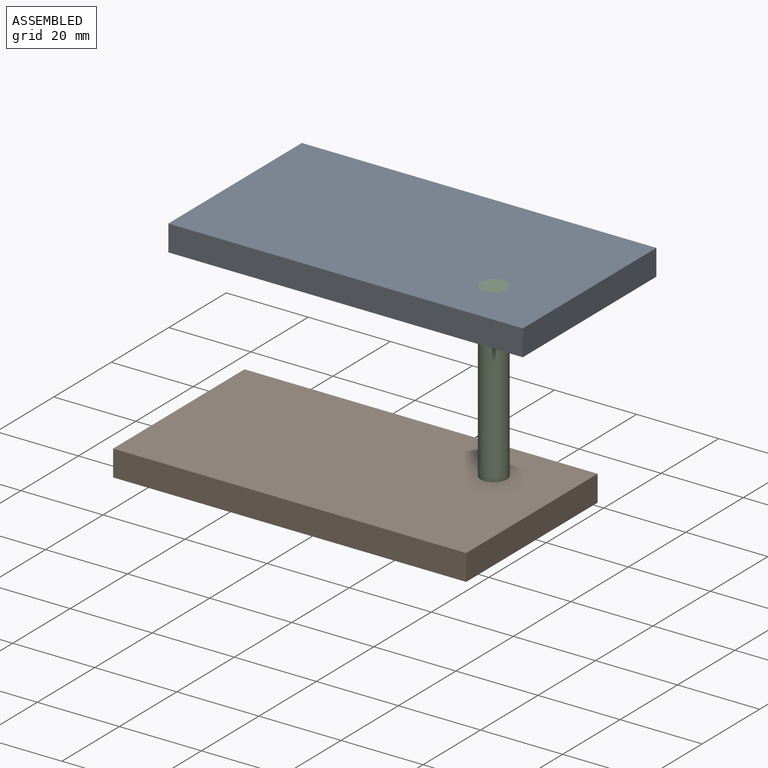
[diagram: assembled view]
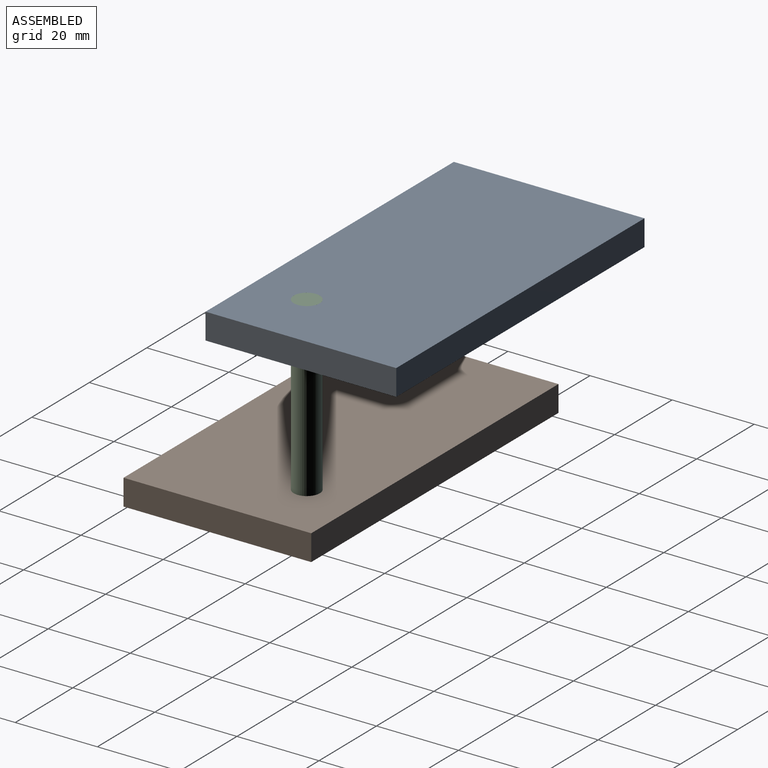
[diagram: assembled view, second angle]
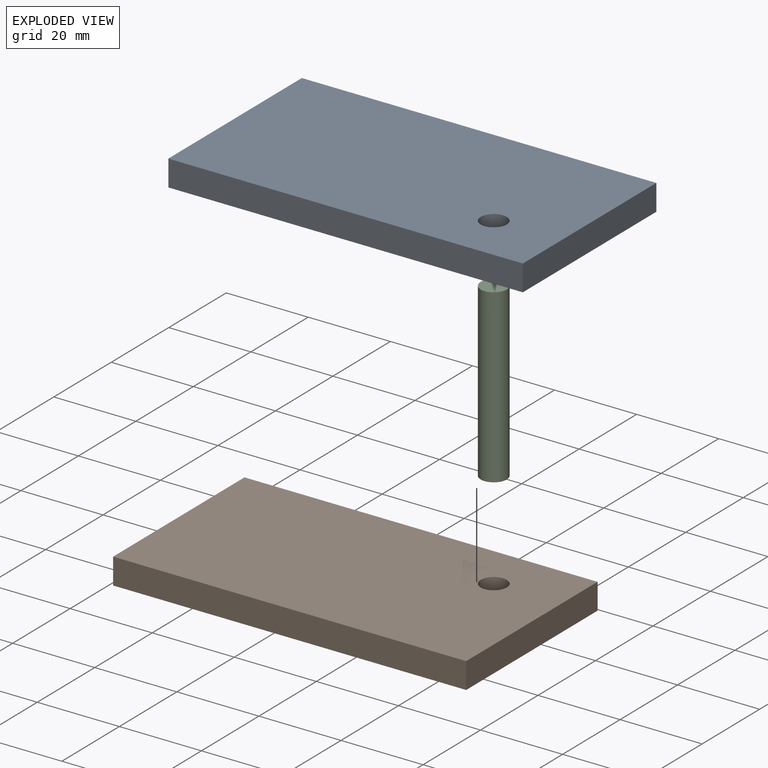
[diagram: exploded view]
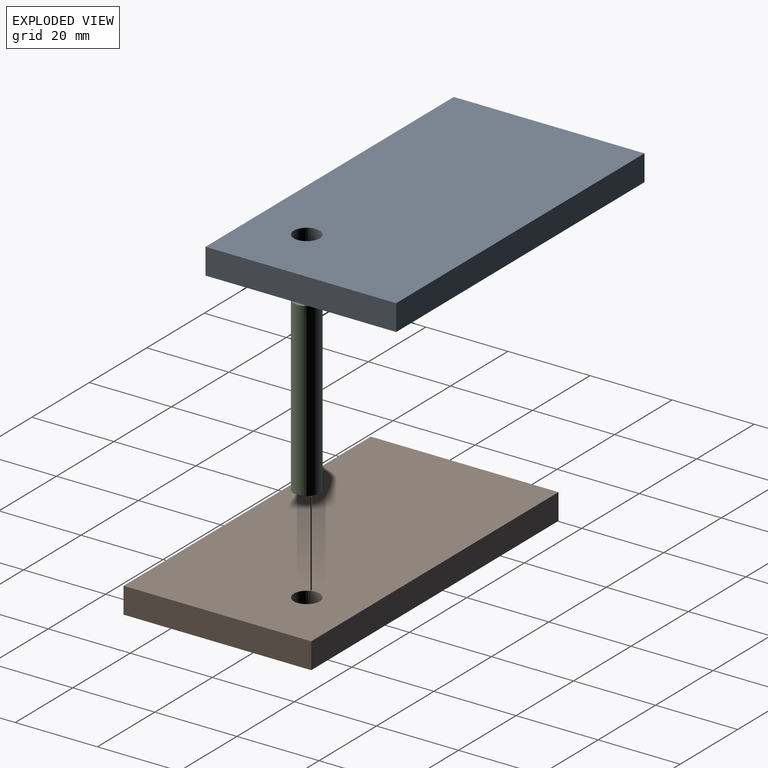
[diagram: exploded view, second angle]
ASSEMBLY  parts=3 mates=2
PART A: 7 faces, bbox 86.4x6.4x46.5 mm
  f0: plane 86.39x6.35mm, normal (0,0,-1), area 548.5mm2, adj f1,f3,f4,f5
  f1: plane 46.46x6.35mm, normal (1,0,0), area 295mm2, adj f0,f2,f4,f5
  f2: plane 86.39x6.35mm, normal (0,0,1), area 548.5mm2, adj f1,f3,f4,f5
  f3: plane 46.46x6.35mm, normal (-1,0,0), area 295mm2, adj f0,f2,f4,f5
  f4: plane 86.39x46.46mm, normal (0,-1,0), area 3981.5mm2, adj f0,f1,f2,f3,f6
  f5: plane 86.39x46.46mm, normal (0,1,0), area 3981.5mm2, adj f0,f1,f2,f3,f6
  f6: cylinder r=3.17mm len=6.35mm, axis (0,1,0), area 126.7mm2, adj f4,f5
PART B: 7 faces, bbox 86x6.4x45.7 mm
  f0: plane 86.04x6.35mm, normal (0,0,-1), area 546.3mm2, adj f1,f3,f4,f5
  f1: plane 45.72x6.35mm, normal (1,0,0), area 290.3mm2, adj f0,f2,f4,f5
  f2: plane 86.04x6.35mm, normal (0,0,1), area 546.3mm2, adj f1,f3,f4,f5
  f3: plane 45.72x6.35mm, normal (-1,0,0), area 290.3mm2, adj f0,f2,f4,f5
  f4: plane 86.04x45.72mm, normal (0,-1,0), area 3902.2mm2, adj f0,f1,f2,f3,f6
  f5: plane 86.04x45.72mm, normal (0,1,0), area 3902.2mm2, adj f0,f1,f2,f3,f6
  f6: cylinder r=3.17mm len=6.35mm, axis (0,1,0), area 126.7mm2, adj f4,f5
PART C: 3 faces, bbox 6.4x6.4x41.8 mm
  f0: plane 6.35x6.35mm, normal (0,0,1), area 31.7mm2, adj f2
  f1: plane 6.35x6.35mm, normal (0,0,-1), area 31.7mm2, adj f2
  f2: cylinder r=3.17mm len=41.84mm, axis (0,0,-1), area 834.7mm2, adj f0,f1
PLACE A rot(axis=(1,0,0),90deg) t=(-114.3,-6.18,26.27)mm
PLACE B rot(axis=(-1,0,0),90deg) t=(-114,-26.44,-21.92)mm
PLACE C t=(-87.45,-16.19,9.86)mm
MATE fastened A.f6 <-> C.f2  axis (0,0,1) through (-87.45,-16.19,26.27)mm
MATE fastened C.f2 <-> B.f6  axis (0,0,-1) through (-87.45,-16.19,-15.57)mm
